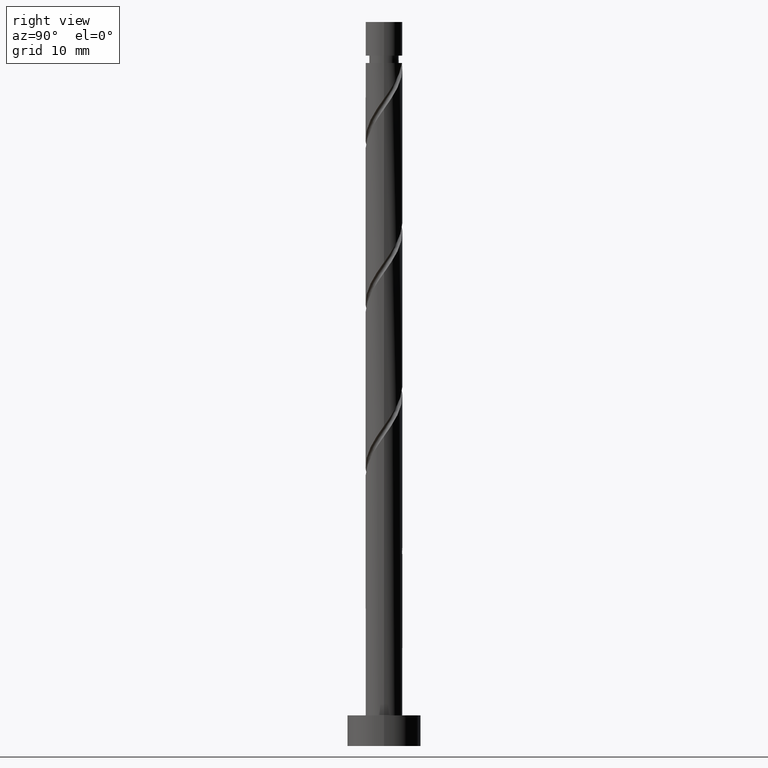
[diagram: clean part render]
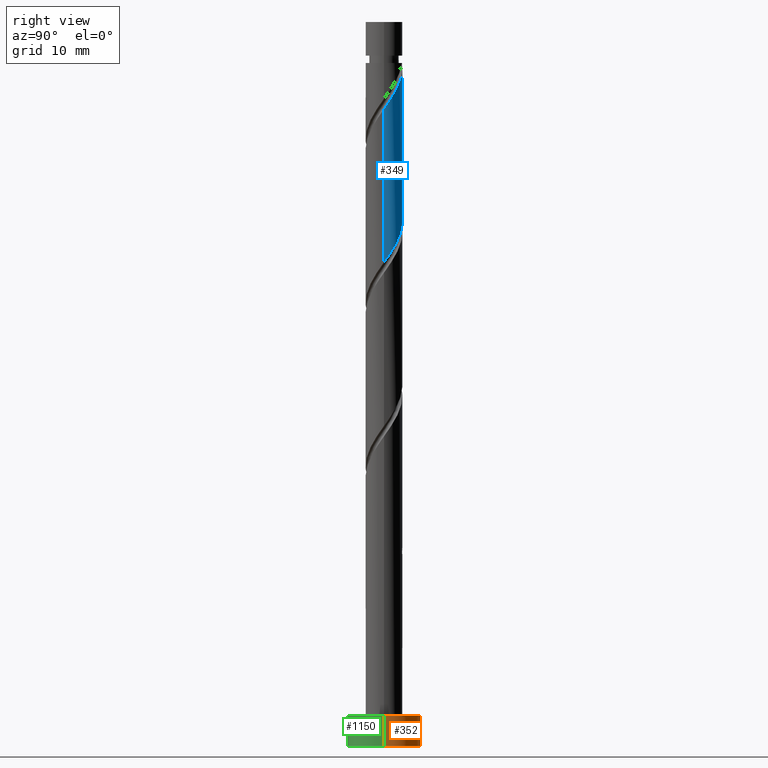
[diagram: same view with three faces highlighted in distinct colors, each labeled with its STEP entity id]
A machine part, right view with three faces highlighted in distinct colors.
Their STEP definitions:

[orange] entity #352 — the highlighted cylindrical surface (partial cylindrical patch) has radius 6 mm, axis along (-0, -0, -1).
#9 = AXIS2_PLACEMENT_3D ( 'NONE', #972, #1476, #186 ) ;
#37 = CARTESIAN_POINT ( 'NONE',  ( -6.000000000000000888, 0.000000000000000000, 5.000000000000000000 ) ) ;
#44 = LINE ( 'NONE', #813, #1544 ) ;
#104 = EDGE_LOOP ( 'NONE', ( #1613, #1649, #743, #1256 ) ) ;
#120 = LINE ( 'NONE', #1416, #1244 ) ;
#154 = DIRECTION ( 'NONE',  ( -0.000000000000000000, -0.000000000000000000, -1.000000000000000000 ) ) ;
#186 = DIRECTION ( 'NONE',  ( 1.000000000000000000, 0.000000000000000000, 0.000000000000000000 ) ) ;
#228 = CARTESIAN_POINT ( 'NONE',  ( -6.000000000000000888, 0.000000000000000000, 0.000000000000000000 ) ) ;
#261 = DIRECTION ( 'NONE',  ( -0.000000000000000000, -0.000000000000000000, -1.000000000000000000 ) ) ;
#308 = CARTESIAN_POINT ( 'NONE',  ( 0.000000000000000000, 0.000000000000000000, 0.000000000000000000 ) ) ;
#352 = ADVANCED_FACE ( 'NONE', ( #395 ), #673, .T. ) ;
#395 = FACE_OUTER_BOUND ( 'NONE', #104, .T. ) ;
#545 = CARTESIAN_POINT ( 'NONE',  ( 6.000000000000000888, 7.347880794884120722E-16, 0.000000000000000000 ) ) ;
#603 = CIRCLE ( 'NONE', #9, 6.000000000000000888 ) ;
#673 = CYLINDRICAL_SURFACE ( 'NONE', #1066, 6.000000000000000888 ) ;
#681 = DIRECTION ( 'NONE',  ( 1.000000000000000000, 0.000000000000000000, 0.000000000000000000 ) ) ;
#743 = ORIENTED_EDGE ( 'NONE', *, *, #980, .T. ) ;
#813 = CARTESIAN_POINT ( 'NONE',  ( 6.000000000000000888, 7.347880794884120722E-16, 5.000000000000000000 ) ) ;
#839 = EDGE_CURVE ( 'NONE', #1062, #1264, #120, .T. ) ;
#957 = VERTEX_POINT ( 'NONE', #1196 ) ;
#972 = CARTESIAN_POINT ( 'NONE',  ( 0.000000000000000000, 0.000000000000000000, 5.000000000000000000 ) ) ;
#980 = EDGE_CURVE ( 'NONE', #1222, #1264, #1330, .T. ) ;
#1040 = EDGE_CURVE ( 'NONE', #957, #1062, #603, .T. ) ;
#1062 = VERTEX_POINT ( 'NONE', #37 ) ;
#1066 = AXIS2_PLACEMENT_3D ( 'NONE', #1420, #261, #1291 ) ;
#1086 = DIRECTION ( 'NONE',  ( 0.000000000000000000, 0.000000000000000000, 1.000000000000000000 ) ) ;
#1105 = EDGE_CURVE ( 'NONE', #957, #1222, #44, .T. ) ;
#1196 = CARTESIAN_POINT ( 'NONE',  ( 6.000000000000000888, 7.347880794884120722E-16, 5.000000000000000000 ) ) ;
#1222 = VERTEX_POINT ( 'NONE', #545 ) ;
#1244 = VECTOR ( 'NONE', #154, 1000.000000000000000 ) ;
#1256 = ORIENTED_EDGE ( 'NONE', *, *, #839, .F. ) ;
#1264 = VERTEX_POINT ( 'NONE', #228 ) ;
#1291 = DIRECTION ( 'NONE',  ( -1.000000000000000000, 0.000000000000000000, 0.000000000000000000 ) ) ;
#1324 = DIRECTION ( 'NONE',  ( -0.000000000000000000, -0.000000000000000000, -1.000000000000000000 ) ) ;
#1330 = CIRCLE ( 'NONE', #1519, 6.000000000000000888 ) ;
#1416 = CARTESIAN_POINT ( 'NONE',  ( -6.000000000000000888, 0.000000000000000000, 5.000000000000000000 ) ) ;
#1420 = CARTESIAN_POINT ( 'NONE',  ( 0.000000000000000000, 0.000000000000000000, 5.000000000000000000 ) ) ;
#1476 = DIRECTION ( 'NONE',  ( 0.000000000000000000, 0.000000000000000000, 1.000000000000000000 ) ) ;
#1519 = AXIS2_PLACEMENT_3D ( 'NONE', #308, #1086, #681 ) ;
#1544 = VECTOR ( 'NONE', #1324, 1000.000000000000000 ) ;
#1613 = ORIENTED_EDGE ( 'NONE', *, *, #1040, .F. ) ;
#1649 = ORIENTED_EDGE ( 'NONE', *, *, #1105, .T. ) ;

[blue] entity #349 — the highlighted cylindrical surface (edge-blend (fillet) strip) has radius 3 mm, axis along (-0, -0, -1).
#21 = CARTESIAN_POINT ( 'NONE',  ( 2.922317697815699944, 0.6782766935647610573, 79.80623245001356736 ) ) ;
#22 = VERTEX_POINT ( 'NONE', #788 ) ;
#49 = LINE ( 'NONE', #1316, #270 ) ;
#52 = CARTESIAN_POINT ( 'NONE',  ( 2.172641248934617408, 2.113215508140330989, 107.0789597227408336 ) ) ;
#84 = CARTESIAN_POINT ( 'NONE',  ( -0.5969924622622646559, 2.939999999983021084, 111.3213839651650829 ) ) ;
#97 = CARTESIAN_POINT ( 'NONE',  ( -2.679995620803124368, 1.415511657632331444, 90.10926275304387900 ) ) ;
#124 = CYLINDRICAL_SURFACE ( 'NONE', #1270, 3.000000000000000444 ) ;
#149 = CARTESIAN_POINT ( 'NONE',  ( -2.999999999999999112, 0.000000000000000000, 111.3213839651650687 ) ) ;
#177 = DIRECTION ( 'NONE',  ( -0.000000000000000000, -0.000000000000000000, -1.000000000000000000 ) ) ;
#210 = CARTESIAN_POINT ( 'NONE',  ( -1.489272404272451888, 2.639719205955342041, 87.68502032880145691 ) ) ;
#218 = CARTESIAN_POINT ( 'NONE',  ( -0.2554836442707042465, 2.989101555235311292, 85.86683851061961548 ) ) ;
#244 = DIRECTION ( 'NONE',  ( -1.000000000000000000, 0.000000000000000000, 0.000000000000000000 ) ) ;
#270 = VECTOR ( 'NONE', #177, 1000.000000000000000 ) ;
#278 = EDGE_CURVE ( 'NONE', #1216, #22, #520, .T. ) ;
#343 = CARTESIAN_POINT ( 'NONE',  ( -2.995035924847409881, 0.1725103152667151196, 91.92744457122563517 ) ) ;
#349 = ADVANCED_FACE ( 'NONE', ( #1174 ), #124, .T. ) ;
#353 = CARTESIAN_POINT ( 'NONE',  ( 1.401103789956902990, 2.652717129617932823, 83.44259608637722181 ) ) ;
#443 = EDGE_CURVE ( 'NONE', #1241, #22, #679, .T. ) ;
#467 = CARTESIAN_POINT ( 'NONE',  ( -1.087261985366304584, 2.796043879336897575, 87.07895972274081942 ) ) ;
#476 = CARTESIAN_POINT ( 'NONE',  ( 0.6852515664601606105, 2.952368552718455774, 109.5032021469832699 ) ) ;
#498 = EDGE_CURVE ( 'NONE', #1631, #1081, #1027, .T. ) ;
#508 = ORIENTED_EDGE ( 'NONE', *, *, #498, .F. ) ;
#514 = CARTESIAN_POINT ( 'NONE',  ( 3.000000000000000888, -2.871709575071340591E-15, 78.83750511113260018 ) ) ;
#520 = CIRCLE ( 'NONE', #1575, 2.999999999999999112 ) ;
#523 = CARTESIAN_POINT ( 'NONE',  ( 3.000000000000000888, 0.3435867821553666435, 79.32346506410394227 ) ) ;
#588 = CARTESIAN_POINT ( 'NONE',  ( 3.000000000000005773, 0.08632657957146007421, 103.9273608239157198 ) ) ;
#596 = CARTESIAN_POINT ( 'NONE',  ( -2.970232686021826218, 0.6031314709949326947, 91.32138396516508294 ) ) ;
#604 = CARTESIAN_POINT ( 'NONE',  ( -1.830956826603531873, 2.376467357047835627, 88.29108093486203757 ) ) ;
#626 = CARTESIAN_POINT ( 'NONE',  ( -0.1742842779187538105, 3.025834557752176579, 110.7153233591044454 ) ) ;
#636 = ORIENTED_EDGE ( 'NONE', *, *, #278, .T. ) ;
#642 = CARTESIAN_POINT ( 'NONE',  ( 2.612850670599507374, 1.474113758550441355, 81.01835366213477130 ) ) ;
#647 = DIRECTION ( 'NONE',  ( -0.000000000000000000, -0.000000000000000000, -1.000000000000000000 ) ) ;
#657 = CARTESIAN_POINT ( 'NONE',  ( 0.000000000000000000, 0.000000000000000000, 118.0000000000000142 ) ) ;
#670 = CARTESIAN_POINT ( 'NONE',  ( 2.400905109240607072, 1.849784970432860831, 81.62441426819539458 ) ) ;
#679 =( BOUNDED_CURVE ( )  B_SPLINE_CURVE ( 2, ( #1199, #588, #716, #1456, #1328, #696, #1338, #52, #877, #1495, #1376, #476, #1119, #626, #84 ),
 .UNSPECIFIED., .F., .T. ) 
 B_SPLINE_CURVE_WITH_KNOTS ( ( 3, 2, 2, 2, 2, 2, 2, 3 ),
 ( 0.6795252162417512176, 0.6818181818181818787, 0.6931818181818181213, 0.7045454545454545858, 0.7159090909090908283, 0.7272727272727274039, 0.7386363636363637575, 0.7500000000000001110 ),
 .UNSPECIFIED. ) 
 CURVE ( )  GEOMETRIC_REPRESENTATION_ITEM ( )  RATIONAL_B_SPLINE_CURVE ( ( 0.9061101570135567940, 0.9072237824201389023, 0.9090909090909164991, 0.8998376744372190705, 0.9090909090909164991, 0.8998376744372190705, 0.9090909090909164991, 0.8998376744372190705, 0.9090909090909164991, 0.8998376744372190705, 0.9090909090909164991, 0.8998376744372190705, 0.9090909090909164991, 0.8998376744372189595, 0.9090909090909166101 ) ) 
 REPRESENTATION_ITEM ( '' )  );
#694 = CARTESIAN_POINT ( 'NONE',  ( 3.000000000000000888, -2.871709575071340591E-15, 78.83750511113260018 ) ) ;
#696 = CARTESIAN_POINT ( 'NONE',  ( 2.679995620803127476, 1.415511657632331444, 105.8668385106196013 ) ) ;
#697 = ORIENTED_EDGE ( 'NONE', *, *, #777, .F. ) ;
#716 = CARTESIAN_POINT ( 'NONE',  ( 2.995035924847414321, 0.1725103152667142592, 104.0486566924377883 ) ) ;
#741 = VECTOR ( 'NONE', #903, 1000.000000000000000 ) ;
#742 = CARTESIAN_POINT ( 'NONE',  ( 0.5969924622639726230, 2.939999999999999503, 84.65471729849839733 ) ) ;
#777 = EDGE_CURVE ( 'NONE', #1216, #1631, #1153, .T. ) ;
#788 = CARTESIAN_POINT ( 'NONE',  ( -0.5969924622622647670, 2.939999999983021084, 111.3213839651650829 ) ) ;
#800 = DIRECTION ( 'NONE',  ( -1.000000000000000000, 0.000000000000000000, 0.000000000000000000 ) ) ;
#825 = ORIENTED_EDGE ( 'NONE', *, *, #918, .T. ) ;
#877 = CARTESIAN_POINT ( 'NONE',  ( 1.830956826603534982, 2.376467357047839624, 107.6850203288014427 ) ) ;
#885 = CARTESIAN_POINT ( 'NONE',  ( 1.782506933304612184, 2.451268816988038779, 82.83653548031658431 ) ) ;
#897 = CARTESIAN_POINT ( 'NONE',  ( 0.000000000000000000, 0.000000000000000000, 111.3213839651650687 ) ) ;
#903 = DIRECTION ( 'NONE',  ( -0.000000000000000000, -0.000000000000000000, -1.000000000000000000 ) ) ;
#918 = EDGE_CURVE ( 'NONE', #1241, #1081, #49, .T. ) ;
#1000 = CARTESIAN_POINT ( 'NONE',  ( -0.6852515664601593892, 2.952368552718452666, 86.47289911668022455 ) ) ;
#1003 = DIRECTION ( 'NONE',  ( -0.000000000000000000, -0.000000000000000000, -1.000000000000000000 ) ) ;
#1023 = EDGE_LOOP ( 'NONE', ( #1531, #825, #508, #697, #636 ) ) ;
#1027 =( BOUNDED_CURVE ( )  B_SPLINE_CURVE ( 2, ( #1255, #1515, #343, #596, #1387, #97, #1637, #1368, #604, #210, #467, #1000, #218, #1523, #742, #1127, #353, #885, #1393, #670, #642, #1161, #21, #523, #514 ),
 .UNSPECIFIED., .F., .T. ) 
 B_SPLINE_CURVE_WITH_KNOTS ( ( 3, 2, 2, 2, 2, 2, 2, 2, 2, 2, 2, 2, 3 ),
 ( 0.4295252162417512731, 0.4318181818181818232, 0.4431818181818181768, 0.4545454545454545303, 0.4659090909090908839, 0.4772727272727272929, 0.4886363636363636465, 0.5000000000000000000, 0.5113636363636363535, 0.5227272727272727071, 0.5340909090909090606, 0.5454545454545454142, 0.5545252162417513286 ),
 .UNSPECIFIED. ) 
 CURVE ( )  GEOMETRIC_REPRESENTATION_ITEM ( )  RATIONAL_B_SPLINE_CURVE ( ( 0.9061101570135511318, 0.9072237824201332401, 0.9090909090909108370, 0.8998376744372130753, 0.9090909090909108370, 0.8998376744372130753, 0.9090909090909108370, 0.8998376744372130753, 0.9090909090909108370, 0.8998376744372130753, 0.9090909090909108370, 0.8998376744372130753, 0.9090909090909108370, 0.8998376744372130753, 0.9090909090909108370, 0.8998376744372130753, 0.9090909090909108370, 0.8998376744372130753, 0.9090909090909108370, 0.8998376744372130753, 0.9090909090909108370, 0.8998376744372130753, 0.9090909090909108370, 0.9017048011079905612, 0.9061101570135511318 ) ) 
 REPRESENTATION_ITEM ( '' )  );
#1081 = VERTEX_POINT ( 'NONE', #694 ) ;
#1119 = CARTESIAN_POINT ( 'NONE',  ( 0.2554836442707054123, 2.989101555235317065, 110.1092627530438648 ) ) ;
#1127 = CARTESIAN_POINT ( 'NONE',  ( 1.019700646609194239, 2.854165442247829532, 84.04865669243783088 ) ) ;
#1153 = LINE ( 'NONE', #1537, #741 ) ;
#1161 = CARTESIAN_POINT ( 'NONE',  ( 2.824796231958409454, 1.098442546668020103, 80.41229305607414801 ) ) ;
#1174 = FACE_OUTER_BOUND ( 'NONE', #1023, .T. ) ;
#1199 = CARTESIAN_POINT ( 'NONE',  ( 3.000000000000005773, 1.376027504721675134E-15, 103.8052628191975089 ) ) ;
#1216 = VERTEX_POINT ( 'NONE', #149 ) ;
#1241 = VERTEX_POINT ( 'NONE', #1586 ) ;
#1255 = CARTESIAN_POINT ( 'NONE',  ( -3.000000000000000444, -1.944386691454553636E-15, 92.17083844446597141 ) ) ;
#1270 = AXIS2_PLACEMENT_3D ( 'NONE', #657, #647, #800 ) ;
#1316 = CARTESIAN_POINT ( 'NONE',  ( 3.000000000000000444, 3.673940397442060361E-16, 118.0000000000000142 ) ) ;
#1328 = CARTESIAN_POINT ( 'NONE',  ( 2.825114153412478846, 1.009321564313631958, 105.2607779045590206 ) ) ;
#1338 = CARTESIAN_POINT ( 'NONE',  ( 2.426318434868872220, 1.764363582886331105, 106.4728991166802246 ) ) ;
#1368 = CARTESIAN_POINT ( 'NONE',  ( -2.172641248934613412, 2.113215508140330545, 88.89714154092267506 ) ) ;
#1376 = CARTESIAN_POINT ( 'NONE',  ( 1.087261985366306805, 2.796043879336900240, 108.8971415409226466 ) ) ;
#1387 = CARTESIAN_POINT ( 'NONE',  ( -2.825114153412475737, 1.009321564313631292, 90.71532335910444544 ) ) ;
#1393 = CARTESIAN_POINT ( 'NONE',  ( 2.091706021272608851, 2.150526893710449361, 82.23047487425598945 ) ) ;
#1456 = CARTESIAN_POINT ( 'NONE',  ( 2.970232686021831547, 0.6031314709949322506, 104.6547172984983973 ) ) ;
#1495 = CARTESIAN_POINT ( 'NONE',  ( 1.489272404272453221, 2.639719205955345149, 108.2910809348620091 ) ) ;
#1515 = CARTESIAN_POINT ( 'NONE',  ( -3.000000000000000888, 0.08632657957146429306, 92.04874043974774622 ) ) ;
#1523 = CARTESIAN_POINT ( 'NONE',  ( 0.1742842779187503133, 3.025834557752173026, 85.26077790455902061 ) ) ;
#1531 = ORIENTED_EDGE ( 'NONE', *, *, #443, .F. ) ;
#1537 = CARTESIAN_POINT ( 'NONE',  ( -3.000000000000000444, 0.000000000000000000, 118.0000000000000142 ) ) ;
#1560 = CARTESIAN_POINT ( 'NONE',  ( -3.000000000000000444, -1.944386691454553636E-15, 92.17083844446597141 ) ) ;
#1575 = AXIS2_PLACEMENT_3D ( 'NONE', #897, #1003, #244 ) ;
#1586 = CARTESIAN_POINT ( 'NONE',  ( 3.000000000000005773, 1.376027504721675331E-15, 103.8052628191975089 ) ) ;
#1631 = VERTEX_POINT ( 'NONE', #1560 ) ;
#1637 = CARTESIAN_POINT ( 'NONE',  ( -2.426318434868868668, 1.764363582886330217, 89.50320214698325572 ) ) ;

[green] entity #1150 — the highlighted cylindrical surface (partial cylindrical patch) has radius 6 mm, axis along (-0, -0, -1).
#37 = CARTESIAN_POINT ( 'NONE',  ( -6.000000000000000888, 0.000000000000000000, 5.000000000000000000 ) ) ;
#44 = LINE ( 'NONE', #813, #1544 ) ;
#120 = LINE ( 'NONE', #1416, #1244 ) ;
#154 = DIRECTION ( 'NONE',  ( -0.000000000000000000, -0.000000000000000000, -1.000000000000000000 ) ) ;
#216 = FACE_OUTER_BOUND ( 'NONE', #354, .T. ) ;
#228 = CARTESIAN_POINT ( 'NONE',  ( -6.000000000000000888, 0.000000000000000000, 0.000000000000000000 ) ) ;
#230 = ORIENTED_EDGE ( 'NONE', *, *, #1474, .T. ) ;
#344 = ORIENTED_EDGE ( 'NONE', *, *, #1105, .F. ) ;
#354 = EDGE_LOOP ( 'NONE', ( #344, #572, #878, #230 ) ) ;
#434 = DIRECTION ( 'NONE',  ( 1.000000000000000000, 0.000000000000000000, 0.000000000000000000 ) ) ;
#455 = AXIS2_PLACEMENT_3D ( 'NONE', #631, #1020, #434 ) ;
#518 = CIRCLE ( 'NONE', #844, 6.000000000000000888 ) ;
#545 = CARTESIAN_POINT ( 'NONE',  ( 6.000000000000000888, 7.347880794884120722E-16, 0.000000000000000000 ) ) ;
#555 = CARTESIAN_POINT ( 'NONE',  ( 0.000000000000000000, 0.000000000000000000, 5.000000000000000000 ) ) ;
#572 = ORIENTED_EDGE ( 'NONE', *, *, #1212, .F. ) ;
#631 = CARTESIAN_POINT ( 'NONE',  ( 0.000000000000000000, 0.000000000000000000, 0.000000000000000000 ) ) ;
#664 = DIRECTION ( 'NONE',  ( 0.000000000000000000, 0.000000000000000000, 1.000000000000000000 ) ) ;
#712 = CIRCLE ( 'NONE', #455, 6.000000000000000888 ) ;
#722 = CARTESIAN_POINT ( 'NONE',  ( 0.000000000000000000, 0.000000000000000000, 5.000000000000000000 ) ) ;
#791 = DIRECTION ( 'NONE',  ( 1.000000000000000000, 0.000000000000000000, 0.000000000000000000 ) ) ;
#813 = CARTESIAN_POINT ( 'NONE',  ( 6.000000000000000888, 7.347880794884120722E-16, 5.000000000000000000 ) ) ;
#839 = EDGE_CURVE ( 'NONE', #1062, #1264, #120, .T. ) ;
#844 = AXIS2_PLACEMENT_3D ( 'NONE', #555, #664, #791 ) ;
#874 = CYLINDRICAL_SURFACE ( 'NONE', #1172, 6.000000000000000888 ) ;
#878 = ORIENTED_EDGE ( 'NONE', *, *, #839, .T. ) ;
#957 = VERTEX_POINT ( 'NONE', #1196 ) ;
#1020 = DIRECTION ( 'NONE',  ( 0.000000000000000000, 0.000000000000000000, 1.000000000000000000 ) ) ;
#1062 = VERTEX_POINT ( 'NONE', #37 ) ;
#1105 = EDGE_CURVE ( 'NONE', #957, #1222, #44, .T. ) ;
#1125 = DIRECTION ( 'NONE',  ( -0.000000000000000000, -0.000000000000000000, -1.000000000000000000 ) ) ;
#1150 = ADVANCED_FACE ( 'NONE', ( #216 ), #874, .T. ) ;
#1172 = AXIS2_PLACEMENT_3D ( 'NONE', #722, #1125, #1246 ) ;
#1196 = CARTESIAN_POINT ( 'NONE',  ( 6.000000000000000888, 7.347880794884120722E-16, 5.000000000000000000 ) ) ;
#1212 = EDGE_CURVE ( 'NONE', #1062, #957, #518, .T. ) ;
#1222 = VERTEX_POINT ( 'NONE', #545 ) ;
#1244 = VECTOR ( 'NONE', #154, 1000.000000000000000 ) ;
#1246 = DIRECTION ( 'NONE',  ( -1.000000000000000000, 0.000000000000000000, 0.000000000000000000 ) ) ;
#1264 = VERTEX_POINT ( 'NONE', #228 ) ;
#1324 = DIRECTION ( 'NONE',  ( -0.000000000000000000, -0.000000000000000000, -1.000000000000000000 ) ) ;
#1416 = CARTESIAN_POINT ( 'NONE',  ( -6.000000000000000888, 0.000000000000000000, 5.000000000000000000 ) ) ;
#1474 = EDGE_CURVE ( 'NONE', #1264, #1222, #712, .T. ) ;
#1544 = VECTOR ( 'NONE', #1324, 1000.000000000000000 ) ;